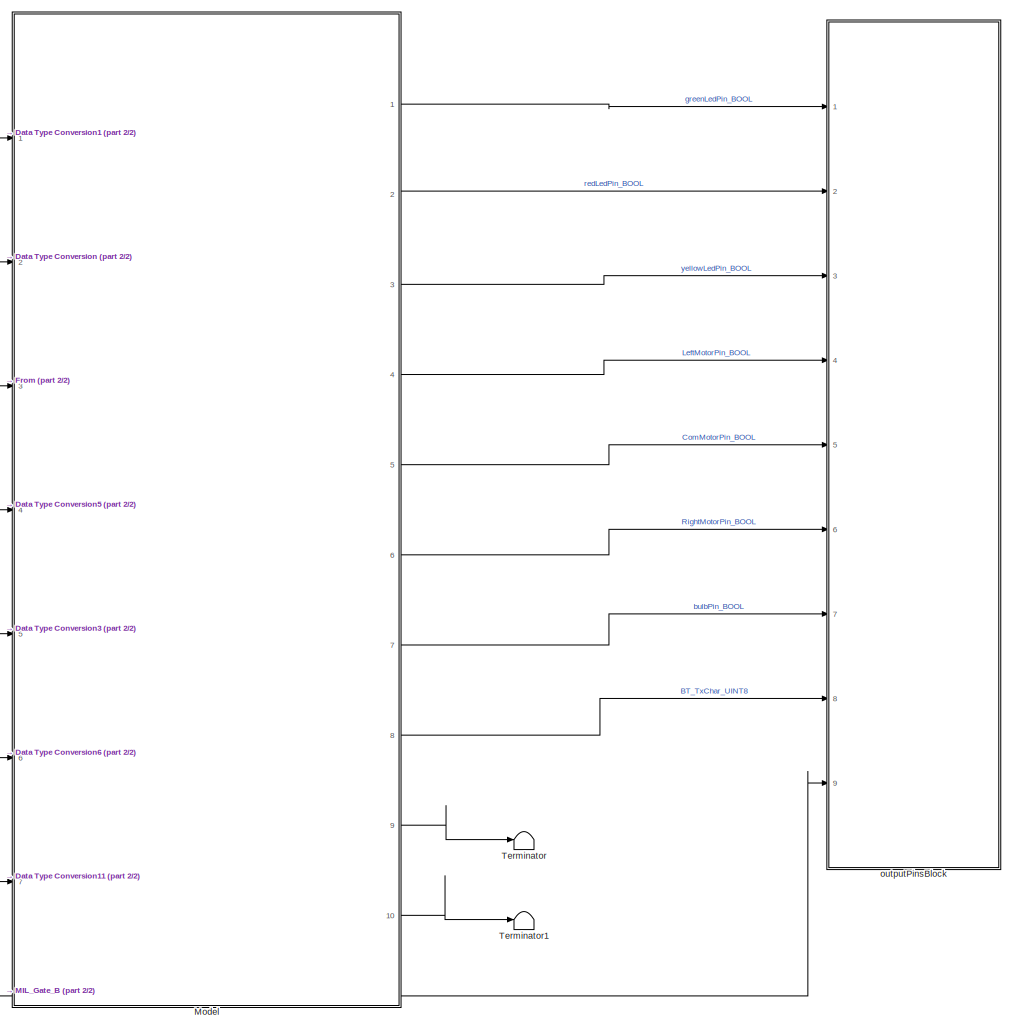
[diagram: root canvas - part 1/2, right side, full height]
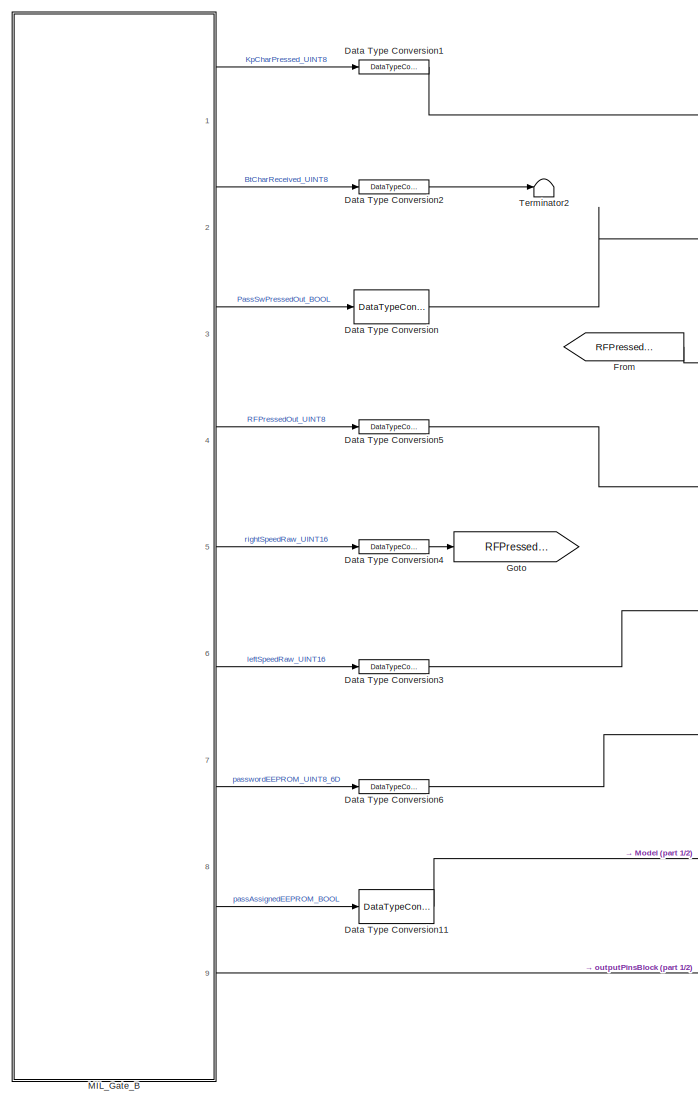
[diagram: root canvas - part 2/2, left side, full height]
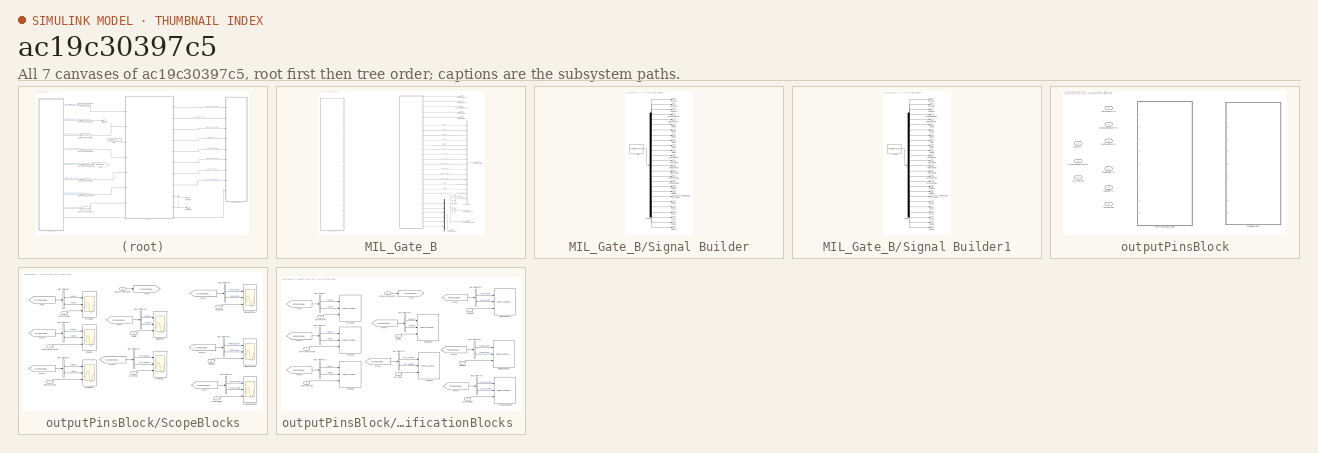
[diagram: thumbnail index - all 7 canvases of the model, root first then tree order]
MODEL slx_ac19c30397c5
KIND model
CONFIG AbsTol = auto
CONFIG FixedStep = auto
CONFIG MaxStep = auto
CONFIG MinStep = auto
CONFIG RelTol = 1e-3
CONFIG SampleTimeConstraint = Unconstrained
CONFIG Solver = VariableStepAuto
CONFIG SolverMode = Auto
CONFIG SolverName = VariableStepAuto
CONFIG StartTime = 0.0
CONFIG StopTime = 10.0
BLOCK [DataTypeConversion] Data Type Conversion
  OutDataTypeStr = boolean
  RndMeth = Floor
  SaturateOnIntegerOverflow = off
BLOCK [DataTypeConversion] Data Type Conversion1
  OutDataTypeStr = uint8
  RndMeth = Floor
  SaturateOnIntegerOverflow = off
BLOCK [DataTypeConversion] Data Type Conversion11
  OutDataTypeStr = boolean
  RndMeth = Floor
  SaturateOnIntegerOverflow = off
BLOCK [DataTypeConversion] Data Type Conversion2
  OutDataTypeStr = uint8
  RndMeth = Floor
  SaturateOnIntegerOverflow = off
BLOCK [DataTypeConversion] Data Type Conversion3
  OutDataTypeStr = uint16
  RndMeth = Floor
  SaturateOnIntegerOverflow = off
BLOCK [DataTypeConversion] Data Type Conversion4
  OutDataTypeStr = uint16
  RndMeth = Floor
  SaturateOnIntegerOverflow = off
BLOCK [DataTypeConversion] Data Type Conversion5
  OutDataTypeStr = uint8
  RndMeth = Floor
  SaturateOnIntegerOverflow = off
BLOCK [DataTypeConversion] Data Type Conversion6
  OutDataTypeStr = uint8
  RndMeth = Floor
  SaturateOnIntegerOverflow = off
BLOCK [From] From
  GotoTag = RFPressedOut_UINT8
BLOCK [Goto] Goto
  GotoTag = RFPressedOut_UINT8
BLOCK [SubSystem] MIL_Gate_B
  Ports = [0, 9]
  RequestExecContextInheritance = off
  Variant = off
  VariantControl = MIL_VariantB
BLOCK [Outport] MIL_Gate_B/BtCharReceived
  IconDisplay = Port number
  Port = 2
BLOCK [BusCreator] MIL_Gate_B/Bus Creator
  DisplayOption = bar
  InheritFromInputs = on
  Inputs = 16
  Ports = [16, 1]
BLOCK [Constant] MIL_Gate_B/Constant
  Value = 0
BLOCK [Constant] MIL_Gate_B/Constant1
  Value = 0
BLOCK [Constant] MIL_Gate_B/Constant2
  Value = 0
BLOCK [Outport] MIL_Gate_B/KpCharPressed
  IconDisplay = Port number
BLOCK [Mux] MIL_Gate_B/Mux
  DisplayOption = bar
  Inputs = 6
  Ports = [6, 1]
BLOCK [Outport] MIL_Gate_B/PassSwPressedOut
  IconDisplay = Port number
  Port = 3
BLOCK [Outport] MIL_Gate_B/RFPressedOut
  IconDisplay = Port number
  Port = 4
BLOCK [SubSystem] MIL_Gate_B/Signal Builder
  ClipboardFcn = sigbuilder_block('clipboard');
  CloseFcn = sigbuilder_block('close');
  ContinueFcn = sigbuilder_block('continue');
  CopyFcn = sigbuilder_block('copy');
  DeleteFcn = sigbuilder_block('delete');
  LoadFcn = sigbuilder_block('load',[133.8 42 1012.8 429 ]);
  MaskHideContents = on
  ModelCloseFcn = sigbuilder_block('modelClose');
  NameChangeFcn = sigbuilder_block('namechange');
  OpenFcn = sigbuilder_block('open',[-1161 42 1012.8 468 ]);
  PauseFcn = sigbuilder_block('pause');
  Ports = [0, 26]
  PreSaveFcn = sigbuilder_block('preSave');
  RequestExecContextInheritance = off
  StartFcn = sigbuilder_block('start');
  StopFcn = sigbuilder_block('stop');
  Tag = STV Subsys
  Variant = off
BLOCK [Outport] MIL_Gate_B/Signal Builder/BulbMax
  IconDisplay = Port number
  Port = 18
  Tag = STV Outport
BLOCK [Outport] MIL_Gate_B/Signal Builder/BulbMin
  IconDisplay = Port number
  Port = 19
  Tag = STV Outport
BLOCK [Demux] MIL_Gate_B/Signal Builder/Demux
  Outputs = 26
  Ports = [1, 26]
  Tag = STV Demux
BLOCK [FromWorkspace] MIL_Gate_B/Signal Builder/FromWs
  OutputAfterFinalValue = Holding final value
  SampleTime = 0
  Tag = STV FromWs
  VariableName = tuvar
  ZeroCross = on
BLOCK [Outport] MIL_Gate_B/Signal Builder/GreenLedMax
  IconDisplay = Port number
  Port = 16
  Tag = STV Outport
BLOCK [Outport] MIL_Gate_B/Signal Builder/GreenLedMin
  IconDisplay = Port number
  Port = 17
  Tag = STV Outport
BLOCK [Outport] MIL_Gate_B/Signal Builder/Kp_input
  IconDisplay = Port number
  Tag = STV Outport
BLOCK [Outport] MIL_Gate_B/Signal Builder/MCMax
  IconDisplay = Port number
  Port = 10
  Tag = STV Outport
BLOCK [Outport] MIL_Gate_B/Signal Builder/MCMin
  IconDisplay = Port number
  Port = 11
  Tag = STV Outport
BLOCK [Outport] MIL_Gate_B/Signal Builder/MLMax
  IconDisplay = Port number
  Port = 6
  Tag = STV Outport
BLOCK [Outport] MIL_Gate_B/Signal Builder/MLMin
  IconDisplay = Port number
  Port = 7
  Tag = STV Outport
BLOCK [Outport] MIL_Gate_B/Signal Builder/MRMax
  IconDisplay = Port number
  Port = 8
  Tag = STV Outport
BLOCK [Outport] MIL_Gate_B/Signal Builder/MRMin
  IconDisplay = Port number
  Port = 9
  Tag = STV Outport
BLOCK [Outport] MIL_Gate_B/Signal Builder/Pass1
  IconDisplay = Port number
  Port = 21
  Tag = STV Outport
BLOCK [Outport] MIL_Gate_B/Signal Builder/Pass2
  IconDisplay = Port number
  Port = 22
  Tag = STV Outport
BLOCK [Outport] MIL_Gate_B/Signal Builder/Pass3
  IconDisplay = Port number
  Port = 23
  Tag = STV Outport
BLOCK [Outport] MIL_Gate_B/Signal Builder/Pass4
  IconDisplay = Port number
  Port = 24
  Tag = STV Outport
BLOCK [Outport] MIL_Gate_B/Signal Builder/Pass5
  IconDisplay = Port number
  Port = 25
  Tag = STV Outport
BLOCK [Outport] MIL_Gate_B/Signal Builder/Pass6
  IconDisplay = Port number
  Port = 26
  Tag = STV Outport
BLOCK [Outport] MIL_Gate_B/Signal Builder/PassAssignedEEPROM
  IconDisplay = Port number
  Port = 20
  Tag = STV Outport
BLOCK [Outport] MIL_Gate_B/Signal Builder/RF_input
  IconDisplay = Port number
  Port = 2
  Tag = STV Outport
BLOCK [Outport] MIL_Gate_B/Signal Builder/RedLedMax
  IconDisplay = Port number
  Port = 12
  Tag = STV Outport
BLOCK [Outport] MIL_Gate_B/Signal Builder/RedLedMin
  IconDisplay = Port number
  Port = 13
  Tag = STV Outport
BLOCK [Outport] MIL_Gate_B/Signal Builder/SW_input
  IconDisplay = Port number
  Port = 3
  Tag = STV Outport
BLOCK [Outport] MIL_Gate_B/Signal Builder/YellowLedMax
  IconDisplay = Port number
  Port = 14
  Tag = STV Outport
BLOCK [Outport] MIL_Gate_B/Signal Builder/YellowLedMin
  IconDisplay = Port number
  Port = 15
  Tag = STV Outport
BLOCK [Outport] MIL_Gate_B/Signal Builder/leftSpeedRaw
  IconDisplay = Port number
  Port = 5
  Tag = STV Outport
BLOCK [Outport] MIL_Gate_B/Signal Builder/rightSpeedRaw
  IconDisplay = Port number
  Port = 4
  Tag = STV Outport
BLOCK [SubSystem] MIL_Gate_B/Signal Builder1
  ClipboardFcn = sigbuilder_block('clipboard');
  CloseFcn = sigbuilder_block('close');
  Commented = on
  ContinueFcn = sigbuilder_block('continue');
  CopyFcn = sigbuilder_block('copy');
  DeleteFcn = sigbuilder_block('delete');
  LoadFcn = sigbuilder_block('load');
  MaskHideContents = on
  ModelCloseFcn = sigbuilder_block('modelClose');
  NameChangeFcn = sigbuilder_block('namechange');
  OpenFcn = sigbuilder_block('open',[-1139.4 30 1012.8 507 ]);
  PauseFcn = sigbuilder_block('pause');
  Ports = [0, 26]
  PreSaveFcn = sigbuilder_block('preSave');
  RequestExecContextInheritance = off
  StartFcn = sigbuilder_block('start');
  StopFcn = sigbuilder_block('stop');
  Tag = STV Subsys
  Variant = off
BLOCK [Outport] MIL_Gate_B/Signal Builder1/BulbMax
  IconDisplay = Port number
  Port = 18
  Tag = STV Outport
BLOCK [Outport] MIL_Gate_B/Signal Builder1/BulbMin
  IconDisplay = Port number
  Port = 19
  Tag = STV Outport
BLOCK [Demux] MIL_Gate_B/Signal Builder1/Demux
  Outputs = 26
  Ports = [1, 26]
  Tag = STV Demux
BLOCK [FromWorkspace] MIL_Gate_B/Signal Builder1/FromWs
  OutputAfterFinalValue = Holding final value
  SampleTime = 0
  Tag = STV FromWs
  VariableName = tuvar
  ZeroCross = on
BLOCK [Outport] MIL_Gate_B/Signal Builder1/GreenLedMax
  IconDisplay = Port number
  Port = 16
  Tag = STV Outport
BLOCK [Outport] MIL_Gate_B/Signal Builder1/GreenLedMin
  IconDisplay = Port number
  Port = 17
  Tag = STV Outport
BLOCK [Outport] MIL_Gate_B/Signal Builder1/Kp_input
  IconDisplay = Port number
  Tag = STV Outport
BLOCK [Outport] MIL_Gate_B/Signal Builder1/MCMax
  IconDisplay = Port number
  Port = 10
  Tag = STV Outport
BLOCK [Outport] MIL_Gate_B/Signal Builder1/MCMin
  IconDisplay = Port number
  Port = 11
  Tag = STV Outport
BLOCK [Outport] MIL_Gate_B/Signal Builder1/MLMax
  IconDisplay = Port number
  Port = 6
  Tag = STV Outport
BLOCK [Outport] MIL_Gate_B/Signal Builder1/MLMin
  IconDisplay = Port number
  Port = 7
  Tag = STV Outport
BLOCK [Outport] MIL_Gate_B/Signal Builder1/MRMax
  IconDisplay = Port number
  Port = 8
  Tag = STV Outport
BLOCK [Outport] MIL_Gate_B/Signal Builder1/MRMin
  IconDisplay = Port number
  Port = 9
  Tag = STV Outport
BLOCK [Outport] MIL_Gate_B/Signal Builder1/Pass1
  IconDisplay = Port number
  Port = 21
  Tag = STV Outport
BLOCK [Outport] MIL_Gate_B/Signal Builder1/Pass2
  IconDisplay = Port number
  Port = 22
  Tag = STV Outport
BLOCK [Outport] MIL_Gate_B/Signal Builder1/Pass3
  IconDisplay = Port number
  Port = 23
  Tag = STV Outport
BLOCK [Outport] MIL_Gate_B/Signal Builder1/Pass4
  IconDisplay = Port number
  Port = 24
  Tag = STV Outport
BLOCK [Outport] MIL_Gate_B/Signal Builder1/Pass5
  IconDisplay = Port number
  Port = 25
  Tag = STV Outport
BLOCK [Outport] MIL_Gate_B/Signal Builder1/Pass6
  IconDisplay = Port number
  Port = 26
  Tag = STV Outport
BLOCK [Outport] MIL_Gate_B/Signal Builder1/PassAssignedEEPROM
  IconDisplay = Port number
  Port = 20
  Tag = STV Outport
BLOCK [Outport] MIL_Gate_B/Signal Builder1/RF_input
  IconDisplay = Port number
  Port = 2
  Tag = STV Outport
BLOCK [Outport] MIL_Gate_B/Signal Builder1/RedLedMax
  IconDisplay = Port number
  Port = 12
  Tag = STV Outport
BLOCK [Outport] MIL_Gate_B/Signal Builder1/RedLedMin
  IconDisplay = Port number
  Port = 13
  Tag = STV Outport
BLOCK [Outport] MIL_Gate_B/Signal Builder1/SW_input
  IconDisplay = Port number
  Port = 3
  Tag = STV Outport
BLOCK [Outport] MIL_Gate_B/Signal Builder1/YellowLedMax
  IconDisplay = Port number
  Port = 14
  Tag = STV Outport
BLOCK [Outport] MIL_Gate_B/Signal Builder1/YellowLedMin
  IconDisplay = Port number
  Port = 15
  Tag = STV Outport
BLOCK [Outport] MIL_Gate_B/Signal Builder1/leftSpeedRaw
  IconDisplay = Port number
  Port = 5
  Tag = STV Outport
BLOCK [Outport] MIL_Gate_B/Signal Builder1/rightSpeedRaw
  IconDisplay = Port number
  Port = 4
  Tag = STV Outport
BLOCK [Outport] MIL_Gate_B/SimuOutputLimits
  IconDisplay = Port number
  Port = 9
BLOCK [Outport] MIL_Gate_B/leftCurrentRaw
  IconDisplay = Port number
  Port = 6
BLOCK [Outport] MIL_Gate_B/passAssignedOut
  IconDisplay = Port number
  Port = 8
BLOCK [Outport] MIL_Gate_B/passwordOut
  IconDisplay = Port number
  Port = 7
BLOCK [Outport] MIL_Gate_B/rightCurrentRaw
  IconDisplay = Port number
  Port = 5
BLOCK [ModelReference] Model
  ModelNameDialog = GATE_B.slx
  ModelReferenceVersion = 1.331
  Ports = [7, 10]
  Variant = off
BLOCK [Terminator] Terminator
BLOCK [Terminator] Terminator1
BLOCK [Terminator] Terminator2
BLOCK [SubSystem] outputPinsBlock
  OverrideUsingVariant = VVOutputs
  Ports = [9]
  RequestExecContextInheritance = off
  Variant = on
  VariantControl = Variant1
BLOCK [Inport] outputPinsBlock/BT_TxChar
  IconDisplay = Port number
  Port = 8
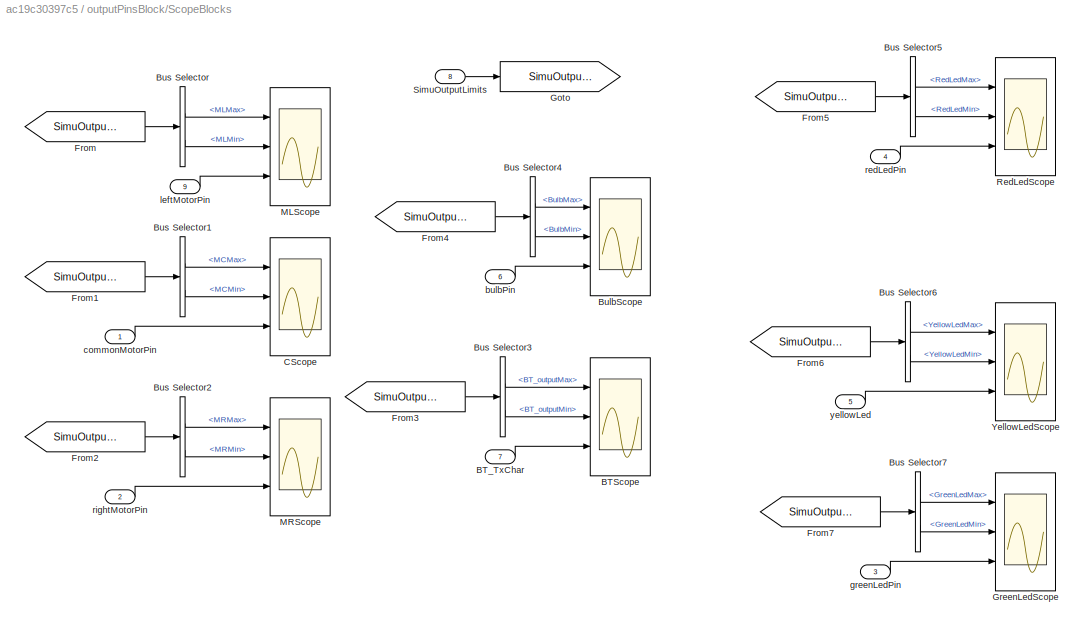
BLOCK [SubSystem] outputPinsBlock/ScopeBlocks
  Ports = [9]
  RequestExecContextInheritance = off
  Variant = off
  VariantControl = VisualOutputs
BLOCK [Scope] outputPinsBlock/ScopeBlocks/BTScope
  NumInputPorts = 3
  Ports = [3]
  ScopeSpecificationString = Simulink.scopes.TimeScopeBlockCfg('CurrentConfiguration', extmgr.ConfigurationSet(extmgr.Configuration('Core','General UI',true),extmgr.Configuration('Core','Source UI',true),extmgr.Configuration('Sources','WiredSimulink',true,'SampleTime','0.001'),extmgr.Configuration('Visuals','Time Domain',true,'SerializedDisplays',{struct('MinYLimReal','-0.19944','MaxYLimReal','0.15433','YLabelReal','','MinYLi...<+1493ch>
BLOCK [Inport] outputPinsBlock/ScopeBlocks/BT_TxChar
  IconDisplay = Port number
  Port = 7
BLOCK [Scope] outputPinsBlock/ScopeBlocks/BulbScope
  NumInputPorts = 3
  Ports = [3]
  ScopeSpecificationString = Simulink.scopes.TimeScopeBlockCfg('CurrentConfiguration', extmgr.ConfigurationSet(extmgr.Configuration('Core','General UI',true),extmgr.Configuration('Core','Source UI',true),extmgr.Configuration('Sources','WiredSimulink',true,'SampleTime','0.001','DataLoggingVariableName','ScopeData2'),extmgr.Configuration('Visuals','Time Domain',true,'SerializedDisplays',{struct('MinYLimReal','-0.25','MaxYLimRea...<+1482ch>
BLOCK [BusSelector] outputPinsBlock/ScopeBlocks/Bus Selector
  OutputSignals = MLMax,MLMin
  Ports = [1, 2]
BLOCK [BusSelector] outputPinsBlock/ScopeBlocks/Bus Selector1
  OutputSignals = MCMax,MCMin
  Ports = [1, 2]
BLOCK [BusSelector] outputPinsBlock/ScopeBlocks/Bus Selector2
  OutputSignals = MRMax,MRMin
  Ports = [1, 2]
BLOCK [BusSelector] outputPinsBlock/ScopeBlocks/Bus Selector3
  OutputSignals = BT_outputMax,BT_outputMin
  Ports = [1, 2]
BLOCK [BusSelector] outputPinsBlock/ScopeBlocks/Bus Selector4
  OutputSignals = BulbMax,BulbMin
  Ports = [1, 2]
BLOCK [BusSelector] outputPinsBlock/ScopeBlocks/Bus Selector5
  OutputSignals = RedLedMax,RedLedMin
  Ports = [1, 2]
BLOCK [BusSelector] outputPinsBlock/ScopeBlocks/Bus Selector6
  OutputSignals = YellowLedMax,YellowLedMin
  Ports = [1, 2]
BLOCK [BusSelector] outputPinsBlock/ScopeBlocks/Bus Selector7
  OutputSignals = GreenLedMax,GreenLedMin
  Ports = [1, 2]
BLOCK [Scope] outputPinsBlock/ScopeBlocks/CScope
  NumInputPorts = 3
  Ports = [3]
  ScopeSpecificationString = Simulink.scopes.TimeScopeBlockCfg('CurrentConfiguration', extmgr.ConfigurationSet(extmgr.Configuration('Core','General UI',true),extmgr.Configuration('Core','Source UI',true),extmgr.Configuration('Sources','WiredSimulink',true,'SampleTime','0.001','DataLoggingVariableName','ScopeData2'),extmgr.Configuration('Visuals','Time Domain',true,'SerializedDisplays',{struct('MinYLimReal','-0.25','MaxYLimRea...<+1493ch>
BLOCK [From] outputPinsBlock/ScopeBlocks/From
  GotoTag = SimuOutputLimits
BLOCK [From] outputPinsBlock/ScopeBlocks/From1
  GotoTag = SimuOutputLimits
BLOCK [From] outputPinsBlock/ScopeBlocks/From2
  GotoTag = SimuOutputLimits
BLOCK [From] outputPinsBlock/ScopeBlocks/From3
  GotoTag = SimuOutputLimits
BLOCK [From] outputPinsBlock/ScopeBlocks/From4
  GotoTag = SimuOutputLimits
BLOCK [From] outputPinsBlock/ScopeBlocks/From5
  GotoTag = SimuOutputLimits
BLOCK [From] outputPinsBlock/ScopeBlocks/From6
  GotoTag = SimuOutputLimits
BLOCK [From] outputPinsBlock/ScopeBlocks/From7
  GotoTag = SimuOutputLimits
BLOCK [Goto] outputPinsBlock/ScopeBlocks/Goto
  GotoTag = SimuOutputLimits
BLOCK [Scope] outputPinsBlock/ScopeBlocks/GreenLedScope
  NumInputPorts = 3
  Ports = [3]
  ScopeSpecificationString = Simulink.scopes.TimeScopeBlockCfg('CurrentConfiguration', extmgr.ConfigurationSet(extmgr.Configuration('Core','General UI',true),extmgr.Configuration('Core','Source UI',true),extmgr.Configuration('Sources','WiredSimulink',true,'SampleTime','0.001','DataLoggingVariableName','ScopeData1'),extmgr.Configuration('Visuals','Time Domain',true,'SerializedDisplays',{struct('MinYLimReal','-0.25','MaxYLimRea...<+1496ch>
BLOCK [Scope] outputPinsBlock/ScopeBlocks/MLScope
  NumInputPorts = 3
  Ports = [3]
  ScopeSpecificationString = Simulink.scopes.TimeScopeBlockCfg('CurrentConfiguration', extmgr.ConfigurationSet(extmgr.Configuration('Core','General UI',true),extmgr.Configuration('Core','Source UI',true),extmgr.Configuration('Sources','WiredSimulink',true,'SampleTime','0.001'),extmgr.Configuration('Visuals','Time Domain',true,'SerializedDisplays',{struct('MinYLimReal','-0.25','MaxYLimReal','1.25','YLabelReal','','MinYLimMag',...<+1454ch>
BLOCK [Scope] outputPinsBlock/ScopeBlocks/MRScope
  NumInputPorts = 3
  Ports = [3]
  ScopeSpecificationString = Simulink.scopes.TimeScopeBlockCfg('CurrentConfiguration', extmgr.ConfigurationSet(extmgr.Configuration('Core','General UI',true),extmgr.Configuration('Core','Source UI',true),extmgr.Configuration('Sources','WiredSimulink',true,'SampleTime','0.001','DataLoggingVariableName','ScopeData1'),extmgr.Configuration('Visuals','Time Domain',true,'SerializedDisplays',{struct('MinYLimReal','-0.25','MaxYLimRea...<+1521ch>
BLOCK [Scope] outputPinsBlock/ScopeBlocks/RedLedScope
  NumInputPorts = 3
  Ports = [3]
  ScopeSpecificationString = Simulink.scopes.TimeScopeBlockCfg('CurrentConfiguration', extmgr.ConfigurationSet(extmgr.Configuration('Core','General UI',true),extmgr.Configuration('Core','Source UI',true),extmgr.Configuration('Sources','WiredSimulink',true,'SampleTime','0.001','DataLoggingVariableName','ScopeData3'),extmgr.Configuration('Visuals','Time Domain',true,'SerializedDisplays',{struct('MinYLimReal','-0.25','MaxYLimRea...<+1497ch>
BLOCK [Inport] outputPinsBlock/ScopeBlocks/SimuOutputLimits
  IconDisplay = Port number
  Port = 8
BLOCK [Scope] outputPinsBlock/ScopeBlocks/YellowLedScope
  NumInputPorts = 3
  Ports = [3]
  ScopeSpecificationString = Simulink.scopes.TimeScopeBlockCfg('CurrentConfiguration', extmgr.ConfigurationSet(extmgr.Configuration('Core','General UI',true),extmgr.Configuration('Core','Source UI',true),extmgr.Configuration('Sources','WiredSimulink',true,'SampleTime','0.001'),extmgr.Configuration('Visuals','Time Domain',true,'SerializedDisplays',{struct('MinYLimReal','-0.25','MaxYLimReal','1.25','YLabelReal','','MinYLimMag',...<+1466ch>
BLOCK [Inport] outputPinsBlock/ScopeBlocks/bulbPin
  IconDisplay = Port number
  Port = 6
BLOCK [Inport] outputPinsBlock/ScopeBlocks/commonMotorPin
  IconDisplay = Port number
BLOCK [Inport] outputPinsBlock/ScopeBlocks/greenLedPin
  IconDisplay = Port number
  Port = 3
BLOCK [Inport] outputPinsBlock/ScopeBlocks/leftMotorPin
  IconDisplay = Port number
  Port = 9
BLOCK [Inport] outputPinsBlock/ScopeBlocks/redLedPin
  IconDisplay = Port number
  Port = 4
BLOCK [Inport] outputPinsBlock/ScopeBlocks/rightMotorPin
  IconDisplay = Port number
  Port = 2
BLOCK [Inport] outputPinsBlock/ScopeBlocks/yellowLed
  IconDisplay = Port number
  Port = 5
BLOCK [Inport] outputPinsBlock/SimuOutputLimits
  IconDisplay = Port number
  Port = 9
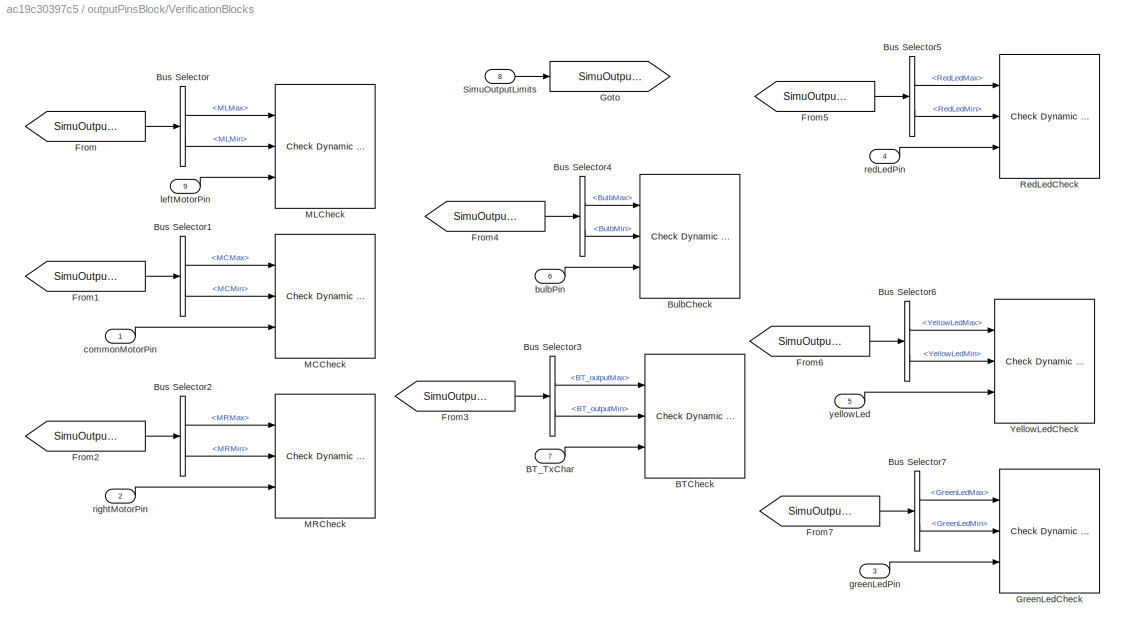
BLOCK [SubSystem] outputPinsBlock/VerificationBlocks 
  Ports = [9]
  RequestExecContextInheritance = off
  Variant = off
  VariantControl = VVOutputs
BLOCK [Reference] outputPinsBlock/VerificationBlocks /BTCheck  REF=simulink/Model
Verification/Check 
Dynamic Range
  Commented = on
  Description = min < sig < max
  Ports = [3]
  SourceBlock = simulink/Model\nVerification/Check \nDynamic Range
  SourceType = Checks_DRange
BLOCK [Inport] outputPinsBlock/VerificationBlocks /BT_TxChar
  IconDisplay = Port number
  Port = 7
BLOCK [Reference] outputPinsBlock/VerificationBlocks /BulbCheck  REF=simulink/Model
Verification/Check 
Dynamic Range
  Description = min < sig < max
  Ports = [3]
  SourceBlock = simulink/Model\nVerification/Check \nDynamic Range
  SourceType = Checks_DRange
BLOCK [BusSelector] outputPinsBlock/VerificationBlocks /Bus Selector
  OutputSignals = MLMax,MLMin
  Ports = [1, 2]
BLOCK [BusSelector] outputPinsBlock/VerificationBlocks /Bus Selector1
  OutputSignals = MCMax,MCMin
  Ports = [1, 2]
BLOCK [BusSelector] outputPinsBlock/VerificationBlocks /Bus Selector2
  OutputSignals = MRMax,MRMin
  Ports = [1, 2]
BLOCK [BusSelector] outputPinsBlock/VerificationBlocks /Bus Selector3
  OutputSignals = BT_outputMax,BT_outputMin
  Ports = [1, 2]
BLOCK [BusSelector] outputPinsBlock/VerificationBlocks /Bus Selector4
  OutputSignals = BulbMax,BulbMin
  Ports = [1, 2]
BLOCK [BusSelector] outputPinsBlock/VerificationBlocks /Bus Selector5
  OutputSignals = RedLedMax,RedLedMin
  Ports = [1, 2]
BLOCK [BusSelector] outputPinsBlock/VerificationBlocks /Bus Selector6
  OutputSignals = YellowLedMax,YellowLedMin
  Ports = [1, 2]
BLOCK [BusSelector] outputPinsBlock/VerificationBlocks /Bus Selector7
  OutputSignals = GreenLedMax,GreenLedMin
  Ports = [1, 2]
BLOCK [From] outputPinsBlock/VerificationBlocks /From
  GotoTag = SimuOutputLimits
BLOCK [From] outputPinsBlock/VerificationBlocks /From1
  GotoTag = SimuOutputLimits
BLOCK [From] outputPinsBlock/VerificationBlocks /From2
  GotoTag = SimuOutputLimits
BLOCK [From] outputPinsBlock/VerificationBlocks /From3
  GotoTag = SimuOutputLimits
BLOCK [From] outputPinsBlock/VerificationBlocks /From4
  GotoTag = SimuOutputLimits
BLOCK [From] outputPinsBlock/VerificationBlocks /From5
  GotoTag = SimuOutputLimits
BLOCK [From] outputPinsBlock/VerificationBlocks /From6
  GotoTag = SimuOutputLimits
BLOCK [From] outputPinsBlock/VerificationBlocks /From7
  GotoTag = SimuOutputLimits
BLOCK [Goto] outputPinsBlock/VerificationBlocks /Goto
  GotoTag = SimuOutputLimits
BLOCK [Reference] outputPinsBlock/VerificationBlocks /GreenLedCheck  REF=simulink/Model
Verification/Check 
Dynamic Range
  Description = min < sig < max
  Ports = [3]
  SourceBlock = simulink/Model\nVerification/Check \nDynamic Range
  SourceType = Checks_DRange
BLOCK [Reference] outputPinsBlock/VerificationBlocks /MCCheck  REF=simulink/Model
Verification/Check 
Dynamic Range
  Description = min < sig < max
  Ports = [3]
  SourceBlock = simulink/Model\nVerification/Check \nDynamic Range
  SourceType = Checks_DRange
BLOCK [Reference] outputPinsBlock/VerificationBlocks /MLCheck  REF=simulink/Model
Verification/Check 
Dynamic Range
  Description = min < sig < max
  Ports = [3]
  SourceBlock = simulink/Model\nVerification/Check \nDynamic Range
  SourceType = Checks_DRange
BLOCK [Reference] outputPinsBlock/VerificationBlocks /MRCheck  REF=simulink/Model
Verification/Check 
Dynamic Range
  Description = min < sig < max
  Ports = [3]
  SourceBlock = simulink/Model\nVerification/Check \nDynamic Range
  SourceType = Checks_DRange
BLOCK [Reference] outputPinsBlock/VerificationBlocks /RedLedCheck  REF=simulink/Model
Verification/Check 
Dynamic Range
  Description = min < sig < max
  Ports = [3]
  SourceBlock = simulink/Model\nVerification/Check \nDynamic Range
  SourceType = Checks_DRange
BLOCK [Inport] outputPinsBlock/VerificationBlocks /SimuOutputLimits
  IconDisplay = Port number
  Port = 8
BLOCK [Reference] outputPinsBlock/VerificationBlocks /YellowLedCheck  REF=simulink/Model
Verification/Check 
Dynamic Range
  Description = min < sig < max
  Ports = [3]
  SourceBlock = simulink/Model\nVerification/Check \nDynamic Range
  SourceType = Checks_DRange
BLOCK [Inport] outputPinsBlock/VerificationBlocks /bulbPin
  IconDisplay = Port number
  Port = 6
BLOCK [Inport] outputPinsBlock/VerificationBlocks /commonMotorPin
  IconDisplay = Port number
BLOCK [Inport] outputPinsBlock/VerificationBlocks /greenLedPin
  IconDisplay = Port number
  Port = 3
BLOCK [Inport] outputPinsBlock/VerificationBlocks /leftMotorPin
  IconDisplay = Port number
  Port = 9
BLOCK [Inport] outputPinsBlock/VerificationBlocks /redLedPin
  IconDisplay = Port number
  Port = 4
BLOCK [Inport] outputPinsBlock/VerificationBlocks /rightMotorPin
  IconDisplay = Port number
  Port = 2
BLOCK [Inport] outputPinsBlock/VerificationBlocks /yellowLed
  IconDisplay = Port number
  Port = 5
BLOCK [Inport] outputPinsBlock/bulbPin
  IconDisplay = Port number
  Port = 7
BLOCK [Inport] outputPinsBlock/commonMotorPin
  IconDisplay = Port number
  Port = 5
BLOCK [Inport] outputPinsBlock/greenLedPin
  IconDisplay = Port number
BLOCK [Inport] outputPinsBlock/leftMotorPin
  IconDisplay = Port number
  Port = 4
BLOCK [Inport] outputPinsBlock/redLedPin
  IconDisplay = Port number
  Port = 2
BLOCK [Inport] outputPinsBlock/rightMotorPin
  IconDisplay = Port number
  Port = 6
BLOCK [Inport] outputPinsBlock/yellowLed
  IconDisplay = Port number
  Port = 3
LINE Data Type Conversion11:1 -> Model:7
LINE Data Type Conversion1:1 -> Model:1
LINE Data Type Conversion2:1 -> Terminator2:1
LINE Data Type Conversion3:1 -> Model:5
LINE Data Type Conversion4:1 -> Goto:1
LINE Data Type Conversion5:1 -> Model:4
LINE Data Type Conversion6:1 -> Model:6
LINE Data Type Conversion:1 -> Model:2
LINE From:1 -> Model:3
LINE MIL_Gate_B/Bus Creator:1 -> MIL_Gate_B/SimuOutputLimits:1
LINE MIL_Gate_B/Constant1:1 -> MIL_Gate_B/Bus Creator:16
LINE MIL_Gate_B/Constant2:1 -> MIL_Gate_B/BtCharReceived:1
LINE MIL_Gate_B/Constant:1 -> MIL_Gate_B/Bus Creator:15
LINE MIL_Gate_B/Mux:1 -> MIL_Gate_B/passwordOut:1
LINE MIL_Gate_B/Signal Builder:1 -> MIL_Gate_B/KpCharPressed:1
LINE MIL_Gate_B/Signal Builder:10 -> MIL_Gate_B/Bus Creator:5
LINE MIL_Gate_B/Signal Builder:11 -> MIL_Gate_B/Bus Creator:6
LINE MIL_Gate_B/Signal Builder:12 -> MIL_Gate_B/Bus Creator:7
LINE MIL_Gate_B/Signal Builder:13 -> MIL_Gate_B/Bus Creator:8
LINE MIL_Gate_B/Signal Builder:14 -> MIL_Gate_B/Bus Creator:9
LINE MIL_Gate_B/Signal Builder:15 -> MIL_Gate_B/Bus Creator:10
LINE MIL_Gate_B/Signal Builder:16 -> MIL_Gate_B/Bus Creator:11
LINE MIL_Gate_B/Signal Builder:17 -> MIL_Gate_B/Bus Creator:12
LINE MIL_Gate_B/Signal Builder:18 -> MIL_Gate_B/Bus Creator:13
LINE MIL_Gate_B/Signal Builder:19 -> MIL_Gate_B/Bus Creator:14
LINE MIL_Gate_B/Signal Builder:2 -> MIL_Gate_B/RFPressedOut:1
LINE MIL_Gate_B/Signal Builder:20 -> MIL_Gate_B/passAssignedOut:1
LINE MIL_Gate_B/Signal Builder:21 -> MIL_Gate_B/Mux:1
LINE MIL_Gate_B/Signal Builder:22 -> MIL_Gate_B/Mux:2
LINE MIL_Gate_B/Signal Builder:23 -> MIL_Gate_B/Mux:3
LINE MIL_Gate_B/Signal Builder:24 -> MIL_Gate_B/Mux:4
LINE MIL_Gate_B/Signal Builder:25 -> MIL_Gate_B/Mux:5
LINE MIL_Gate_B/Signal Builder:26 -> MIL_Gate_B/Mux:6
LINE MIL_Gate_B/Signal Builder:3 -> MIL_Gate_B/PassSwPressedOut:1
LINE MIL_Gate_B/Signal Builder:4 -> MIL_Gate_B/rightCurrentRaw:1
LINE MIL_Gate_B/Signal Builder:5 -> MIL_Gate_B/leftCurrentRaw:1
LINE MIL_Gate_B/Signal Builder:6 -> MIL_Gate_B/Bus Creator:1
LINE MIL_Gate_B/Signal Builder:7 -> MIL_Gate_B/Bus Creator:2
LINE MIL_Gate_B/Signal Builder:8 -> MIL_Gate_B/Bus Creator:3
LINE MIL_Gate_B/Signal Builder:9 -> MIL_Gate_B/Bus Creator:4
LINE MIL_Gate_B:1 -> Data Type Conversion1:1
LINE MIL_Gate_B:2 -> Data Type Conversion2:1
LINE MIL_Gate_B:3 -> Data Type Conversion:1
LINE MIL_Gate_B:4 -> Data Type Conversion5:1
LINE MIL_Gate_B:5 -> Data Type Conversion4:1
LINE MIL_Gate_B:6 -> Data Type Conversion3:1
LINE MIL_Gate_B:7 -> Data Type Conversion6:1
LINE MIL_Gate_B:8 -> Data Type Conversion11:1
LINE MIL_Gate_B:9 -> outputPinsBlock:9
LINE Model:1 -> outputPinsBlock:1
LINE Model:10 -> Terminator1:1
LINE Model:2 -> outputPinsBlock:2
LINE Model:3 -> outputPinsBlock:3
LINE Model:4 -> outputPinsBlock:4
LINE Model:5 -> outputPinsBlock:5
LINE Model:6 -> outputPinsBlock:6
LINE Model:7 -> outputPinsBlock:7
LINE Model:8 -> outputPinsBlock:8
LINE Model:9 -> Terminator:1
LINE outputPinsBlock/ScopeBlocks/BT_TxChar:1 -> outputPinsBlock/ScopeBlocks/BTScope:3
LINE outputPinsBlock/ScopeBlocks/Bus Selector1:1 -> outputPinsBlock/ScopeBlocks/CScope:1
LINE outputPinsBlock/ScopeBlocks/Bus Selector1:2 -> outputPinsBlock/ScopeBlocks/CScope:2
LINE outputPinsBlock/ScopeBlocks/Bus Selector2:1 -> outputPinsBlock/ScopeBlocks/MRScope:1
LINE outputPinsBlock/ScopeBlocks/Bus Selector2:2 -> outputPinsBlock/ScopeBlocks/MRScope:2
LINE outputPinsBlock/ScopeBlocks/Bus Selector3:1 -> outputPinsBlock/ScopeBlocks/BTScope:1
LINE outputPinsBlock/ScopeBlocks/Bus Selector3:2 -> outputPinsBlock/ScopeBlocks/BTScope:2
LINE outputPinsBlock/ScopeBlocks/Bus Selector4:1 -> outputPinsBlock/ScopeBlocks/BulbScope:1
LINE outputPinsBlock/ScopeBlocks/Bus Selector4:2 -> outputPinsBlock/ScopeBlocks/BulbScope:2
LINE outputPinsBlock/ScopeBlocks/Bus Selector5:1 -> outputPinsBlock/ScopeBlocks/RedLedScope:1
LINE outputPinsBlock/ScopeBlocks/Bus Selector5:2 -> outputPinsBlock/ScopeBlocks/RedLedScope:2
LINE outputPinsBlock/ScopeBlocks/Bus Selector6:1 -> outputPinsBlock/ScopeBlocks/YellowLedScope:1
LINE outputPinsBlock/ScopeBlocks/Bus Selector6:2 -> outputPinsBlock/ScopeBlocks/YellowLedScope:2
LINE outputPinsBlock/ScopeBlocks/Bus Selector7:1 -> outputPinsBlock/ScopeBlocks/GreenLedScope:1
LINE outputPinsBlock/ScopeBlocks/Bus Selector7:2 -> outputPinsBlock/ScopeBlocks/GreenLedScope:2
LINE outputPinsBlock/ScopeBlocks/Bus Selector:1 -> outputPinsBlock/ScopeBlocks/MLScope:1
LINE outputPinsBlock/ScopeBlocks/Bus Selector:2 -> outputPinsBlock/ScopeBlocks/MLScope:2
LINE outputPinsBlock/ScopeBlocks/From1:1 -> outputPinsBlock/ScopeBlocks/Bus Selector1:1
LINE outputPinsBlock/ScopeBlocks/From2:1 -> outputPinsBlock/ScopeBlocks/Bus Selector2:1
LINE outputPinsBlock/ScopeBlocks/From3:1 -> outputPinsBlock/ScopeBlocks/Bus Selector3:1
LINE outputPinsBlock/ScopeBlocks/From4:1 -> outputPinsBlock/ScopeBlocks/Bus Selector4:1
LINE outputPinsBlock/ScopeBlocks/From5:1 -> outputPinsBlock/ScopeBlocks/Bus Selector5:1
LINE outputPinsBlock/ScopeBlocks/From6:1 -> outputPinsBlock/ScopeBlocks/Bus Selector6:1
LINE outputPinsBlock/ScopeBlocks/From7:1 -> outputPinsBlock/ScopeBlocks/Bus Selector7:1
LINE outputPinsBlock/ScopeBlocks/From:1 -> outputPinsBlock/ScopeBlocks/Bus Selector:1
LINE outputPinsBlock/ScopeBlocks/SimuOutputLimits:1 -> outputPinsBlock/ScopeBlocks/Goto:1
LINE outputPinsBlock/ScopeBlocks/bulbPin:1 -> outputPinsBlock/ScopeBlocks/BulbScope:3
LINE outputPinsBlock/ScopeBlocks/commonMotorPin:1 -> outputPinsBlock/ScopeBlocks/CScope:3
LINE outputPinsBlock/ScopeBlocks/greenLedPin:1 -> outputPinsBlock/ScopeBlocks/GreenLedScope:3
LINE outputPinsBlock/ScopeBlocks/leftMotorPin:1 -> outputPinsBlock/ScopeBlocks/MLScope:3
LINE outputPinsBlock/ScopeBlocks/redLedPin:1 -> outputPinsBlock/ScopeBlocks/RedLedScope:3
LINE outputPinsBlock/ScopeBlocks/rightMotorPin:1 -> outputPinsBlock/ScopeBlocks/MRScope:3
LINE outputPinsBlock/ScopeBlocks/yellowLed:1 -> outputPinsBlock/ScopeBlocks/YellowLedScope:3
LINE outputPinsBlock/VerificationBlocks /BT_TxChar:1 -> outputPinsBlock/VerificationBlocks /BTCheck:3
LINE outputPinsBlock/VerificationBlocks /Bus Selector1:1 -> outputPinsBlock/VerificationBlocks /MCCheck:1
LINE outputPinsBlock/VerificationBlocks /Bus Selector1:2 -> outputPinsBlock/VerificationBlocks /MCCheck:2
LINE outputPinsBlock/VerificationBlocks /Bus Selector2:1 -> outputPinsBlock/VerificationBlocks /MRCheck:1
LINE outputPinsBlock/VerificationBlocks /Bus Selector2:2 -> outputPinsBlock/VerificationBlocks /MRCheck:2
LINE outputPinsBlock/VerificationBlocks /Bus Selector3:1 -> outputPinsBlock/VerificationBlocks /BTCheck:1
LINE outputPinsBlock/VerificationBlocks /Bus Selector3:2 -> outputPinsBlock/VerificationBlocks /BTCheck:2
LINE outputPinsBlock/VerificationBlocks /Bus Selector4:1 -> outputPinsBlock/VerificationBlocks /BulbCheck:1
LINE outputPinsBlock/VerificationBlocks /Bus Selector4:2 -> outputPinsBlock/VerificationBlocks /BulbCheck:2
LINE outputPinsBlock/VerificationBlocks /Bus Selector5:1 -> outputPinsBlock/VerificationBlocks /RedLedCheck:1
LINE outputPinsBlock/VerificationBlocks /Bus Selector5:2 -> outputPinsBlock/VerificationBlocks /RedLedCheck:2
LINE outputPinsBlock/VerificationBlocks /Bus Selector6:1 -> outputPinsBlock/VerificationBlocks /YellowLedCheck:1
LINE outputPinsBlock/VerificationBlocks /Bus Selector6:2 -> outputPinsBlock/VerificationBlocks /YellowLedCheck:2
LINE outputPinsBlock/VerificationBlocks /Bus Selector7:1 -> outputPinsBlock/VerificationBlocks /GreenLedCheck:1
LINE outputPinsBlock/VerificationBlocks /Bus Selector7:2 -> outputPinsBlock/VerificationBlocks /GreenLedCheck:2
LINE outputPinsBlock/VerificationBlocks /Bus Selector:1 -> outputPinsBlock/VerificationBlocks /MLCheck:1
LINE outputPinsBlock/VerificationBlocks /Bus Selector:2 -> outputPinsBlock/VerificationBlocks /MLCheck:2
LINE outputPinsBlock/VerificationBlocks /From1:1 -> outputPinsBlock/VerificationBlocks /Bus Selector1:1
LINE outputPinsBlock/VerificationBlocks /From2:1 -> outputPinsBlock/VerificationBlocks /Bus Selector2:1
LINE outputPinsBlock/VerificationBlocks /From3:1 -> outputPinsBlock/VerificationBlocks /Bus Selector3:1
LINE outputPinsBlock/VerificationBlocks /From4:1 -> outputPinsBlock/VerificationBlocks /Bus Selector4:1
LINE outputPinsBlock/VerificationBlocks /From5:1 -> outputPinsBlock/VerificationBlocks /Bus Selector5:1
LINE outputPinsBlock/VerificationBlocks /From6:1 -> outputPinsBlock/VerificationBlocks /Bus Selector6:1
LINE outputPinsBlock/VerificationBlocks /From7:1 -> outputPinsBlock/VerificationBlocks /Bus Selector7:1
LINE outputPinsBlock/VerificationBlocks /From:1 -> outputPinsBlock/VerificationBlocks /Bus Selector:1
LINE outputPinsBlock/VerificationBlocks /SimuOutputLimits:1 -> outputPinsBlock/VerificationBlocks /Goto:1
LINE outputPinsBlock/VerificationBlocks /bulbPin:1 -> outputPinsBlock/VerificationBlocks /BulbCheck:3
LINE outputPinsBlock/VerificationBlocks /commonMotorPin:1 -> outputPinsBlock/VerificationBlocks /MCCheck:3
LINE outputPinsBlock/VerificationBlocks /greenLedPin:1 -> outputPinsBlock/VerificationBlocks /GreenLedCheck:3
LINE outputPinsBlock/VerificationBlocks /leftMotorPin:1 -> outputPinsBlock/VerificationBlocks /MLCheck:3
LINE outputPinsBlock/VerificationBlocks /redLedPin:1 -> outputPinsBlock/VerificationBlocks /RedLedCheck:3
LINE outputPinsBlock/VerificationBlocks /rightMotorPin:1 -> outputPinsBlock/VerificationBlocks /MRCheck:3
LINE outputPinsBlock/VerificationBlocks /yellowLed:1 -> outputPinsBlock/VerificationBlocks /YellowLedCheck:3
